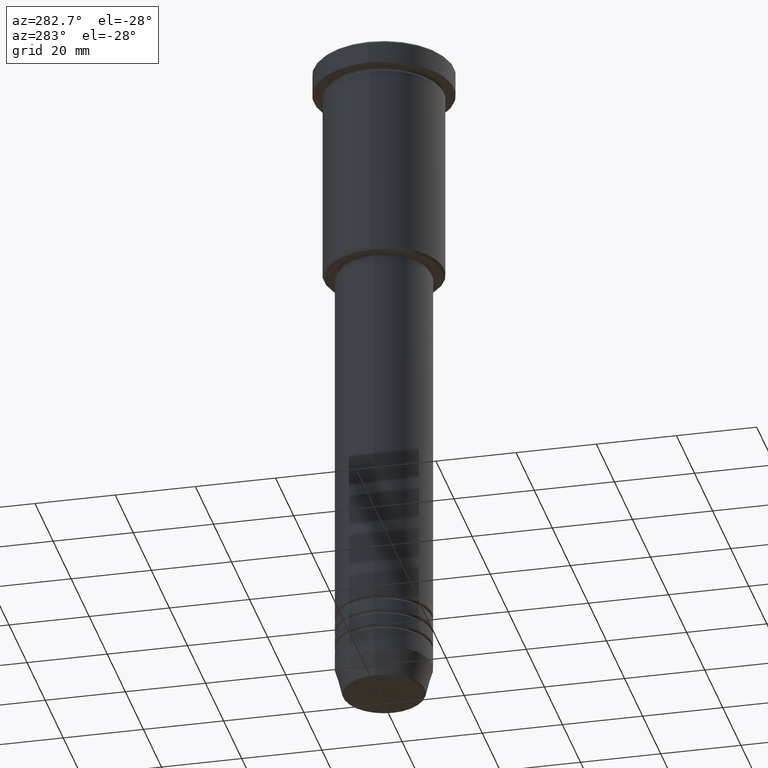
[diagram: clean part render]
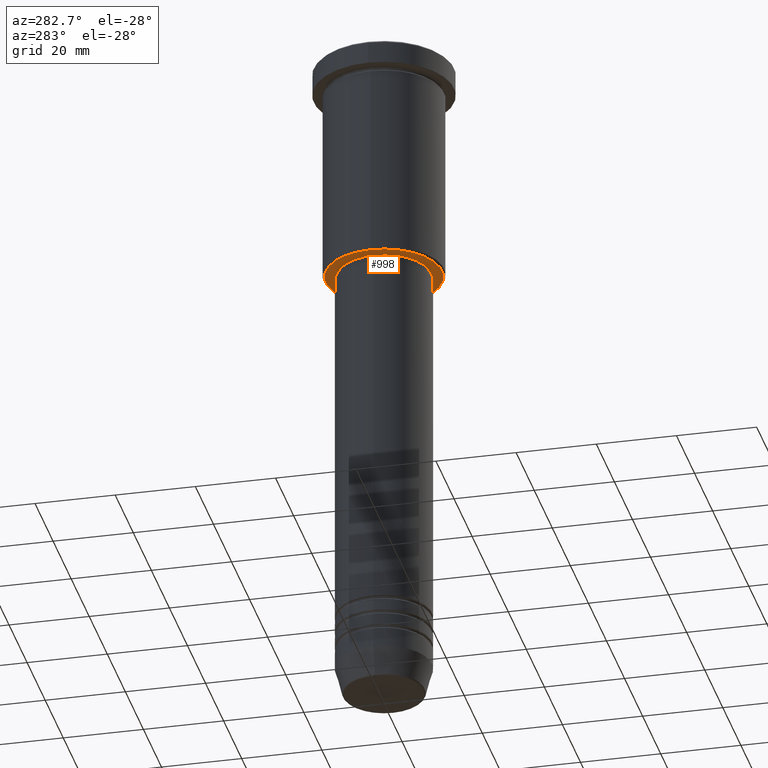
[diagram: same view with one face highlighted and labeled with its STEP entity id]
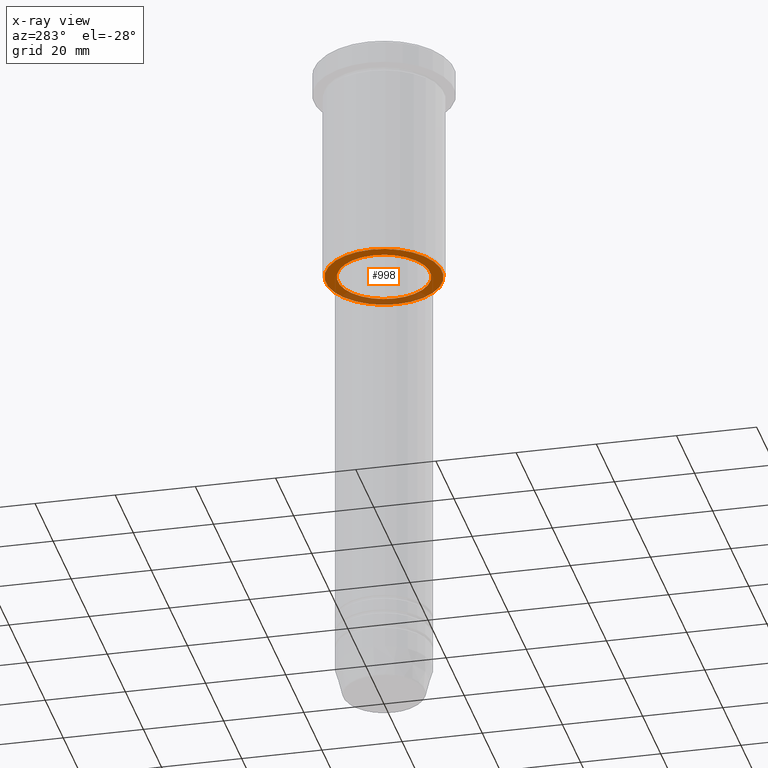
[diagram: x-ray of the same camera — body ghosted, the highlighted face saturated]
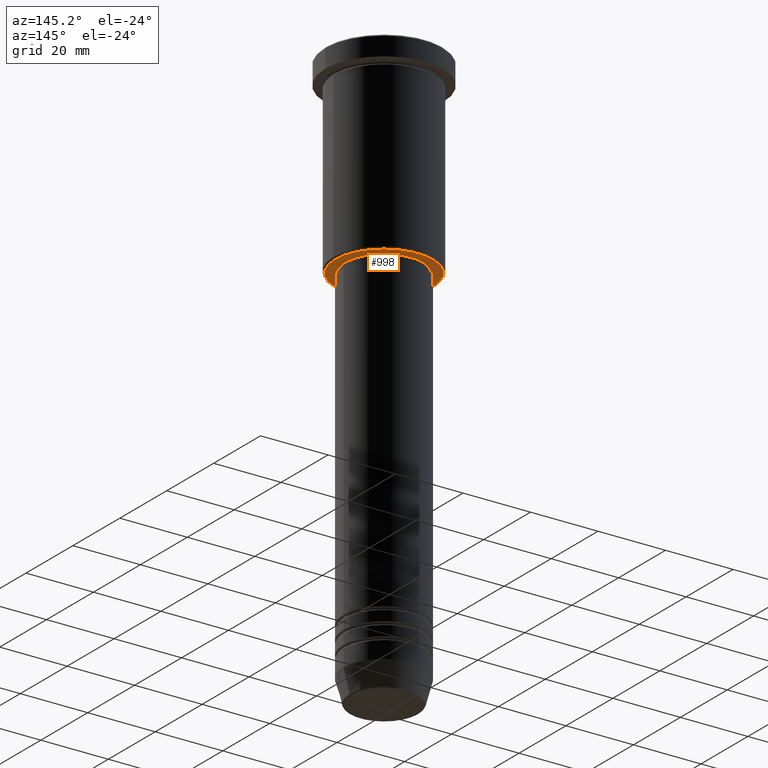
[diagram: same view with one face highlighted and labeled with its STEP entity id]
A machine part, auxiliary view. The second image highlights one B-rep face of the part: STEP entity #998.
The next image is the same camera in x-ray: the body ghosted, the highlighted face saturated — about 26% of this face is hidden behind the body in this view.
A second angle (auxiliary view) of the same face is appended — the face is thin or edge-on in the first view.
In plain terms, the highlighted planar face has unit normal (0, 0, -1).
Its self-contained STEP definition (entity closure, byte-faithful):
#10 = CARTESIAN_POINT ( 'NONE',  ( 0.000000000000000000, 15.00000000000000000, -55.99999999999999289 ) ) ;
#100 = VERTEX_POINT ( 'NONE', #1126 ) ;
#112 = DIRECTION ( 'NONE',  ( 1.000000000000000000, 0.000000000000000000, 0.000000000000000000 ) ) ;
#114 = EDGE_LOOP ( 'NONE', ( #947, #254 ) ) ;
#123 = EDGE_CURVE ( 'NONE', #786, #374, #733, .T. ) ;
#148 = AXIS2_PLACEMENT_3D ( 'NONE', #552, #919, #112 ) ;
#200 = PLANE ( 'NONE',  #981 ) ;
#254 = ORIENTED_EDGE ( 'NONE', *, *, #890, .T. ) ;
#289 = CIRCLE ( 'NONE', #1156, 14.49999999999999645 ) ;
#307 = CIRCLE ( 'NONE', #598, 11.50000000000000000 ) ;
#313 = DIRECTION ( 'NONE',  ( 0.000000000000000000, 0.000000000000000000, -1.000000000000000000 ) ) ;
#314 = VERTEX_POINT ( 'NONE', #984 ) ;
#351 = ORIENTED_EDGE ( 'NONE', *, *, #123, .T. ) ;
#374 = VERTEX_POINT ( 'NONE', #689 ) ;
#379 = DIRECTION ( 'NONE',  ( 0.000000000000000000, 0.000000000000000000, -1.000000000000000000 ) ) ;
#417 = DIRECTION ( 'NONE',  ( -0.000000000000000000, -0.000000000000000000, 1.000000000000000000 ) ) ;
#464 = FACE_OUTER_BOUND ( 'NONE', #1160, .T. ) ;
#499 = DIRECTION ( 'NONE',  ( -1.000000000000000000, 0.000000000000000000, 0.000000000000000000 ) ) ;
#548 = CARTESIAN_POINT ( 'NONE',  ( 14.49999999999999645, 0.000000000000000000, -55.99999999999999289 ) ) ;
#552 = CARTESIAN_POINT ( 'NONE',  ( 0.000000000000000000, 0.000000000000000000, -55.99999999999998579 ) ) ;
#553 = AXIS2_PLACEMENT_3D ( 'NONE', #872, #667, #662 ) ;
#556 = CIRCLE ( 'NONE', #148, 11.50000000000000000 ) ;
#598 = AXIS2_PLACEMENT_3D ( 'NONE', #1023, #417, #965 ) ;
#662 = DIRECTION ( 'NONE',  ( -1.000000000000000000, 0.000000000000000000, 0.000000000000000000 ) ) ;
#667 = DIRECTION ( 'NONE',  ( 0.000000000000000000, 0.000000000000000000, -1.000000000000000000 ) ) ;
#689 = CARTESIAN_POINT ( 'NONE',  ( -14.49999999999999645, 1.806354028742345802E-15, -55.99999999999999289 ) ) ;
#733 = CIRCLE ( 'NONE', #553, 14.49999999999999645 ) ;
#765 = CARTESIAN_POINT ( 'NONE',  ( 0.000000000000000000, 0.000000000000000000, -55.99999999999999289 ) ) ;
#786 = VERTEX_POINT ( 'NONE', #548 ) ;
#800 = EDGE_CURVE ( 'NONE', #314, #100, #556, .T. ) ;
#829 = FACE_BOUND ( 'NONE', #114, .T. ) ;
#841 = DIRECTION ( 'NONE',  ( -1.000000000000000000, 0.000000000000000000, -0.000000000000000000 ) ) ;
#843 = EDGE_CURVE ( 'NONE', #374, #786, #289, .T. ) ;
#872 = CARTESIAN_POINT ( 'NONE',  ( 0.000000000000000000, 0.000000000000000000, -55.99999999999999289 ) ) ;
#890 = EDGE_CURVE ( 'NONE', #100, #314, #307, .T. ) ;
#919 = DIRECTION ( 'NONE',  ( -0.000000000000000000, -0.000000000000000000, 1.000000000000000000 ) ) ;
#947 = ORIENTED_EDGE ( 'NONE', *, *, #800, .T. ) ;
#965 = DIRECTION ( 'NONE',  ( 1.000000000000000000, 0.000000000000000000, 0.000000000000000000 ) ) ;
#981 = AXIS2_PLACEMENT_3D ( 'NONE', #10, #379, #841 ) ;
#984 = CARTESIAN_POINT ( 'NONE',  ( 11.50000000000000000, 0.000000000000000000, -55.99999999999998579 ) ) ;
#998 = ADVANCED_FACE ( 'NONE', ( #464, #829 ), #200, .T. ) ;
#1023 = CARTESIAN_POINT ( 'NONE',  ( 0.000000000000000000, 0.000000000000000000, -55.99999999999998579 ) ) ;
#1027 = ORIENTED_EDGE ( 'NONE', *, *, #843, .T. ) ;
#1126 = CARTESIAN_POINT ( 'NONE',  ( -11.50000000000000000, 1.408343819019456176E-15, -55.99999999999998579 ) ) ;
#1156 = AXIS2_PLACEMENT_3D ( 'NONE', #765, #313, #499 ) ;
#1160 = EDGE_LOOP ( 'NONE', ( #351, #1027 ) ) ;